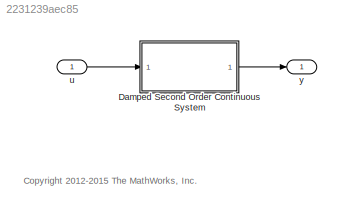
MODEL slx_2231239aec85
KIND model
CONFIG AbsTol = auto
CONFIG EnableMultiTasking = on
CONFIG FixedStep = auto
CONFIG MaxStep = 0.1
CONFIG MinStep = auto
CONFIG RelTol = 1e-3
CONFIG SampleTimeConstraint = Unconstrained
CONFIG SolverName = ode45
CONFIG StartTime = 0.0
CONFIG StopTime = 10.0
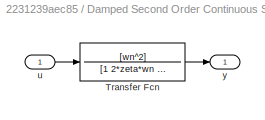
BLOCK [SubSystem] Damped Second Order Continuous System
BLOCK [TransferFcn] Damped Second Order Continuous System/Transfer Fcn
  Denominator = [1 2*zeta*wn wn^2]
  Numerator = [wn^2]
BLOCK [Inport] Damped Second Order Continuous System/u
BLOCK [Outport] Damped Second Order Continuous System/y
BLOCK [Inport] u
BLOCK [Outport] y
ANNOTATION (root): <copyright redacted>
LINE Damped Second Order Continuous System/Transfer Fcn:1 -> Damped Second Order Continuous System/y:1
LINE Damped Second Order Continuous System/u:1 -> Damped Second Order Continuous System/Transfer Fcn:1
LINE Damped Second Order Continuous System:1 -> y:1
LINE u:1 -> Damped Second Order Continuous System:1
